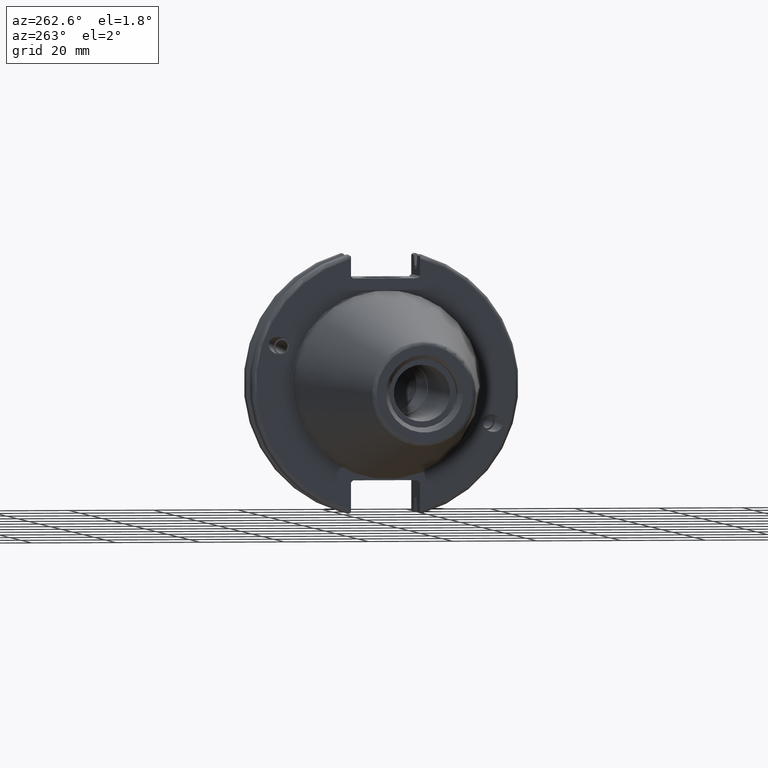
[diagram: clean part render]
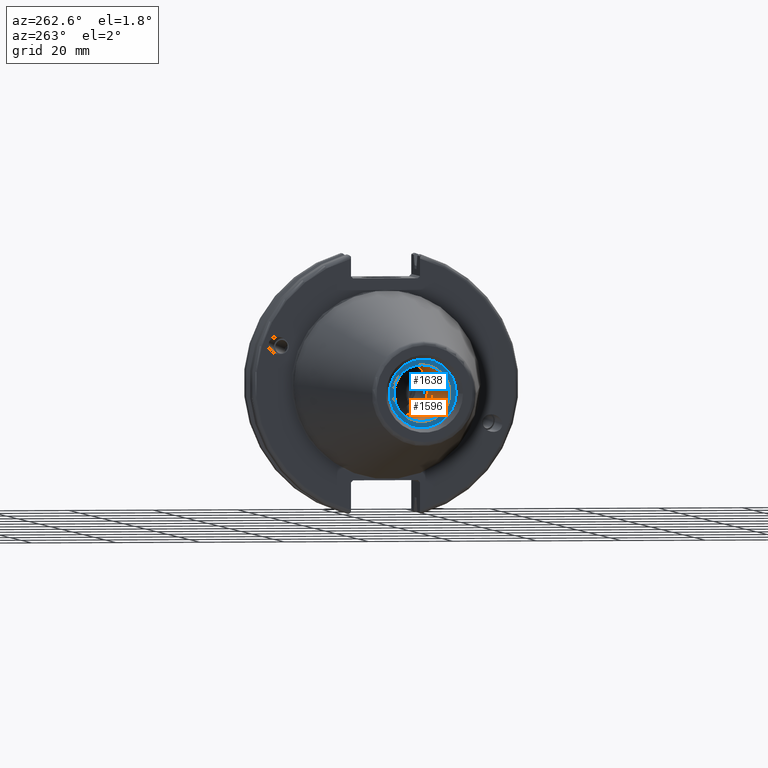
[diagram: same view with the hole feature highlighted: cylindrical wall and planar end face, labeled with their STEP entity ids]
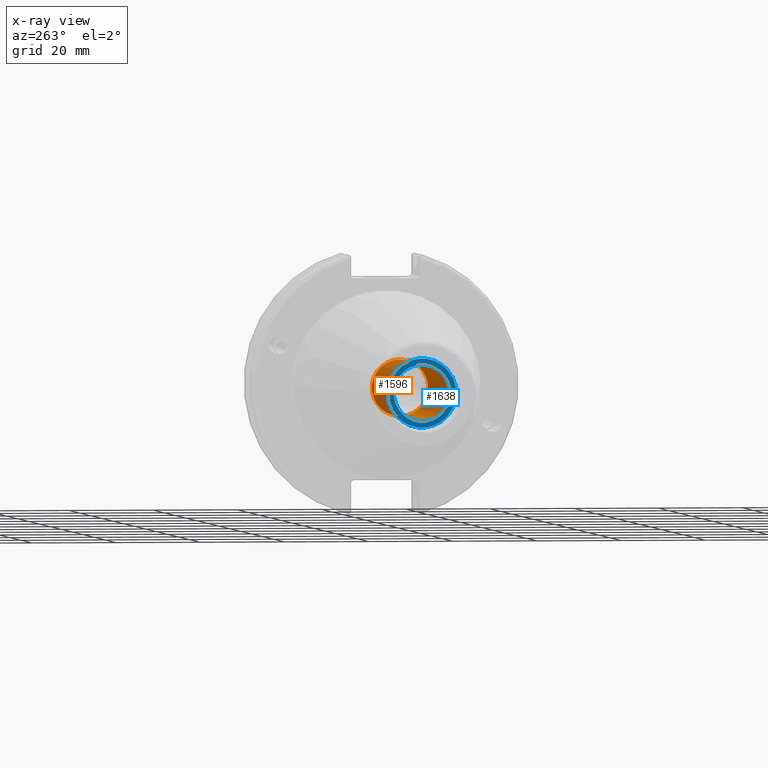
[diagram: x-ray of the same camera — body ghosted, the hole faces saturated]
A machine part, auxiliary view. The highlighted faces form one hole feature of diameter 13.3858 mm: the cylindrical wall (entity #1596, orange) and its adjacent planar end face (entity #1638, blue) — they share a circular edge in the B-rep.
The next image is the same camera in x-ray (body ghosted, the hole faces saturated) — the bore reads through the body.
Wall:
#116=LINE('',#2817,#211);
#211=VECTOR('',#2121,6.6929);
#289=CYLINDRICAL_SURFACE('',#1777,6.6929);
#419=FACE_OUTER_BOUND('',#522,.T.);
#522=EDGE_LOOP('',(#1280,#1281,#1282,#1283));
#621=CIRCLE('',#1776,6.6929);
#622=CIRCLE('',#1778,6.6929);
#746=VERTEX_POINT('',#2811);
#747=VERTEX_POINT('',#2815);
#942=EDGE_CURVE('',#746,#746,#621,.T.);
#944=EDGE_CURVE('',#747,#747,#622,.T.);
#945=EDGE_CURVE('',#747,#746,#116,.T.);
#1280=ORIENTED_EDGE('',*,*,#944,.F.);
#1281=ORIENTED_EDGE('',*,*,#945,.T.);
#1282=ORIENTED_EDGE('',*,*,#942,.F.);
#1283=ORIENTED_EDGE('',*,*,#945,.F.);
#1596=ADVANCED_FACE('',(#419),#289,.F.);
#1776=AXIS2_PLACEMENT_3D('',#2812,#2114,#2115);
#1777=AXIS2_PLACEMENT_3D('',#2814,#2117,#2118);
#1778=AXIS2_PLACEMENT_3D('',#2816,#2119,#2120);
#2114=DIRECTION('center_axis',(-1.,0.,0.));
#2115=DIRECTION('ref_axis',(0.,0.,1.));
#2117=DIRECTION('center_axis',(-1.,0.,0.));
#2118=DIRECTION('ref_axis',(0.,0.,1.));
#2119=DIRECTION('center_axis',(1.,0.,0.));
#2120=DIRECTION('ref_axis',(0.,0.,1.));
#2121=DIRECTION('',(1.,0.,0.));
#2811=CARTESIAN_POINT('',(-23.25,-8.19643856201332E-16,-6.6929));
#2812=CARTESIAN_POINT('Origin',(-23.25,0.,0.));
#2814=CARTESIAN_POINT('Origin',(-45.75,0.,0.));
#2815=CARTESIAN_POINT('',(-63.45,8.19643856201332E-16,-6.6929));
#2816=CARTESIAN_POINT('Origin',(-63.45,0.,0.));
#2817=CARTESIAN_POINT('',(-45.75,-8.19643856201332E-16,-6.6929));
End face:
#315=FACE_BOUND('',#570,.T.);
#373=PLANE('',#1848);
#461=FACE_OUTER_BOUND('',#569,.T.);
#569=EDGE_LOOP('',(#1517));
#570=EDGE_LOOP('',(#1518));
#622=CIRCLE('',#1778,6.6929);
#651=CIRCLE('',#1849,8.14999999999999);
#747=VERTEX_POINT('',#2815);
#812=VERTEX_POINT('',#3141);
#944=EDGE_CURVE('',#747,#747,#622,.T.);
#1051=EDGE_CURVE('',#812,#812,#651,.T.);
#1517=ORIENTED_EDGE('',*,*,#1051,.F.);
#1518=ORIENTED_EDGE('',*,*,#944,.T.);
#1638=ADVANCED_FACE('',(#461,#315),#373,.T.);
#1778=AXIS2_PLACEMENT_3D('',#2816,#2119,#2120);
#1848=AXIS2_PLACEMENT_3D('',#3140,#2313,#2314);
#1849=AXIS2_PLACEMENT_3D('',#3142,#2315,#2316);
#2119=DIRECTION('center_axis',(1.,0.,0.));
#2120=DIRECTION('ref_axis',(0.,0.,1.));
#2313=DIRECTION('center_axis',(-1.,0.,0.));
#2314=DIRECTION('ref_axis',(0.,0.,1.));
#2315=DIRECTION('center_axis',(1.,0.,0.));
#2316=DIRECTION('ref_axis',(0.,0.,-1.));
#2815=CARTESIAN_POINT('',(-63.45,8.19643856201332E-16,-6.6929));
#2816=CARTESIAN_POINT('Origin',(-63.45,0.,0.));
#3140=CARTESIAN_POINT('Origin',(-63.45,8.14999999999999,0.));
#3141=CARTESIAN_POINT('',(-63.45,-8.14999999999999,-9.98087141305092E-16));
#3142=CARTESIAN_POINT('Origin',(-63.45,0.,0.));